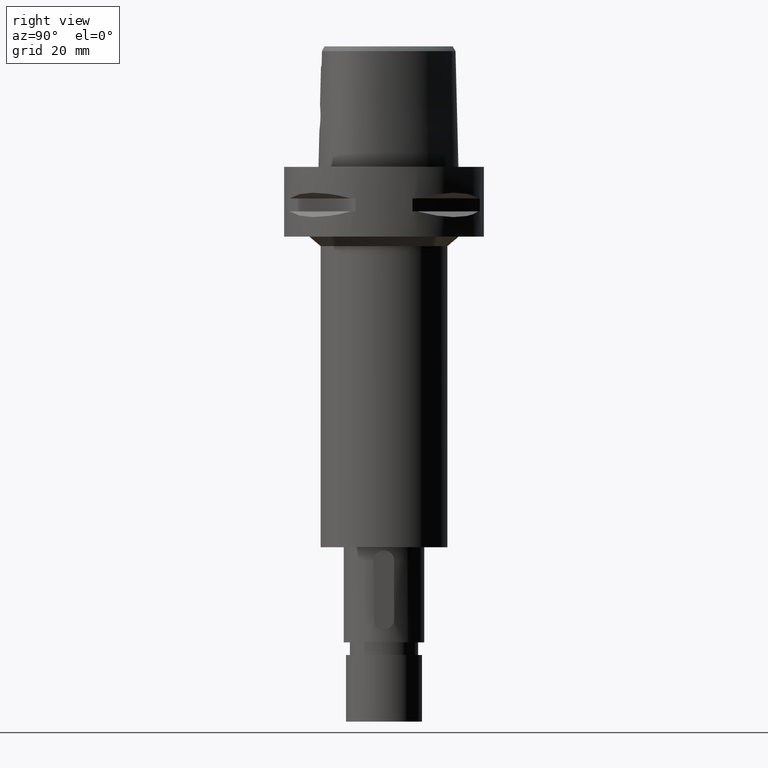
[diagram: clean part render]
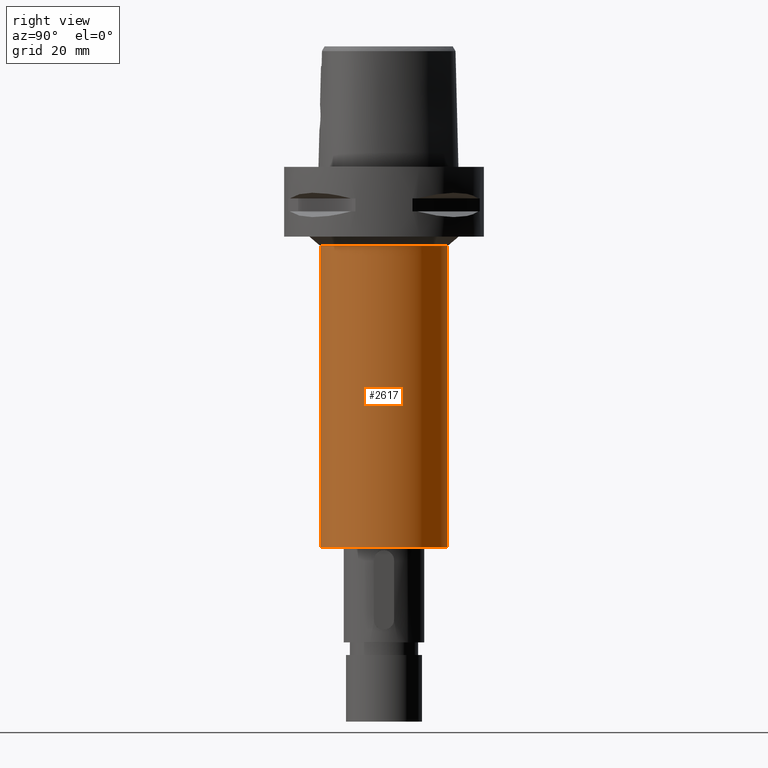
[diagram: same view with one face highlighted and labeled with its STEP entity id]
A machine part, right view. The second image highlights one B-rep face of the part: STEP entity #2617.
In plain terms, the highlighted cylindrical surface (partial cylindrical patch) has radius 20 mm, axis along (0, 0, -1).
Its self-contained STEP definition (entity closure, byte-faithful):
#522=CARTESIAN_POINT('',(0.E0,0.E0,-2.5E1));
#523=DIRECTION('',(0.E0,0.E0,-1.E0));
#524=DIRECTION('',(0.E0,1.E0,0.E0));
#525=AXIS2_PLACEMENT_3D('',#522,#523,#524);
#545=DIRECTION('',(0.E0,0.E0,-1.E0));
#546=VECTOR('',#545,9.5E1);
#547=CARTESIAN_POINT('',(0.E0,-2.E1,-2.5E1));
#548=LINE('',#547,#546);
#552=DIRECTION('',(0.E0,0.E0,-1.E0));
#553=VECTOR('',#552,9.5E1);
#554=CARTESIAN_POINT('',(0.E0,2.E1,-2.5E1));
#555=LINE('',#554,#553);
#567=CARTESIAN_POINT('',(0.E0,1.331803394073E-14,-1.2E2));
#568=DIRECTION('',(0.E0,0.E0,1.E0));
#569=DIRECTION('',(0.E0,-1.E0,0.E0));
#570=AXIS2_PLACEMENT_3D('',#567,#568,#569);
#1656=CARTESIAN_POINT('',(0.E0,2.E1,-2.5E1));
#1657=VERTEX_POINT('',#1656);
#1658=CARTESIAN_POINT('',(0.E0,-2.E1,-2.5E1));
#1659=VERTEX_POINT('',#1658);
#1660=CARTESIAN_POINT('',(0.E0,2.E1,-1.2E2));
#1661=VERTEX_POINT('',#1660);
#1662=CARTESIAN_POINT('',(0.E0,-2.E1,-1.2E2));
#1663=VERTEX_POINT('',#1662);
#2605=CARTESIAN_POINT('',(0.E0,1.331803394073E-14,8.75E0));
#2606=DIRECTION('',(0.E0,0.E0,-1.E0));
#2607=DIRECTION('',(0.E0,-1.E0,0.E0));
#2608=AXIS2_PLACEMENT_3D('',#2605,#2606,#2607);
#2609=CYLINDRICAL_SURFACE('',#2608,2.E1);
#2610=ORIENTED_EDGE('',*,*,#2595,.T.);
#2612=ORIENTED_EDGE('',*,*,#2611,.F.);
#2613=ORIENTED_EDGE('',*,*,#2598,.F.);
#2614=ORIENTED_EDGE('',*,*,#2569,.F.);
#2615=EDGE_LOOP('',(#2610,#2612,#2613,#2614));
#2616=FACE_OUTER_BOUND('',#2615,.F.);
#526=CIRCLE('',#525,2.E1);
#571=CIRCLE('',#570,2.E1);
#2569=EDGE_CURVE('',#1657,#1659,#526,.T.);
#2595=EDGE_CURVE('',#1657,#1661,#555,.T.);
#2598=EDGE_CURVE('',#1659,#1663,#548,.T.);
#2611=EDGE_CURVE('',#1663,#1661,#571,.T.);
#2617=ADVANCED_FACE('',(#2616),#2609,.T.);